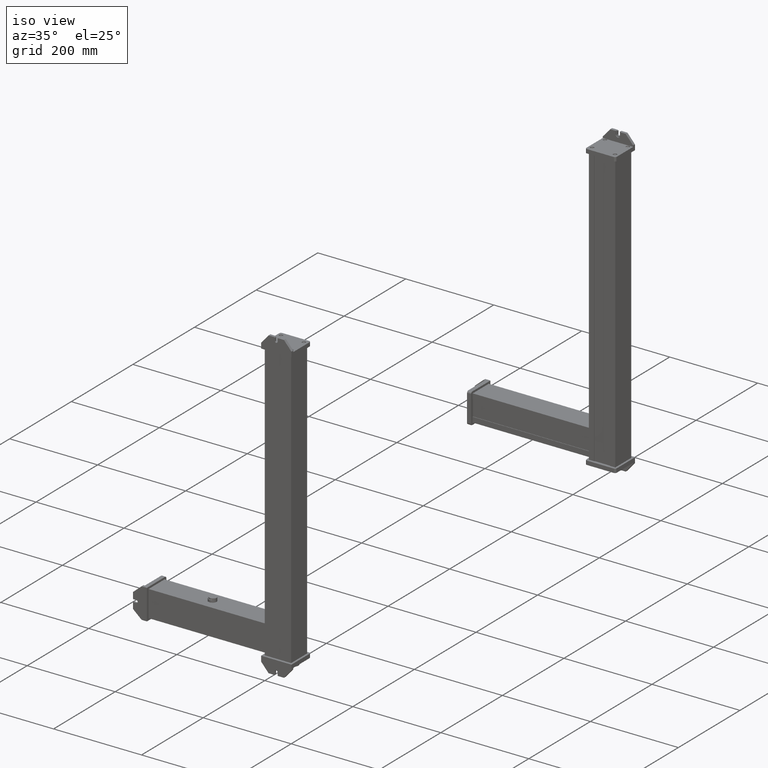
[diagram: clean part render]
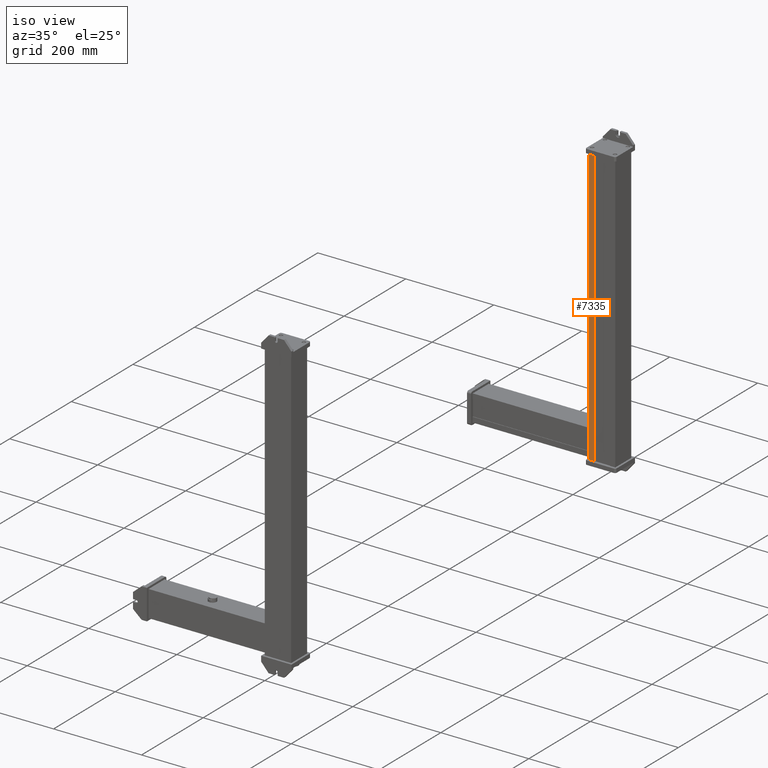
[diagram: same view with one face highlighted and labeled with its STEP entity id]
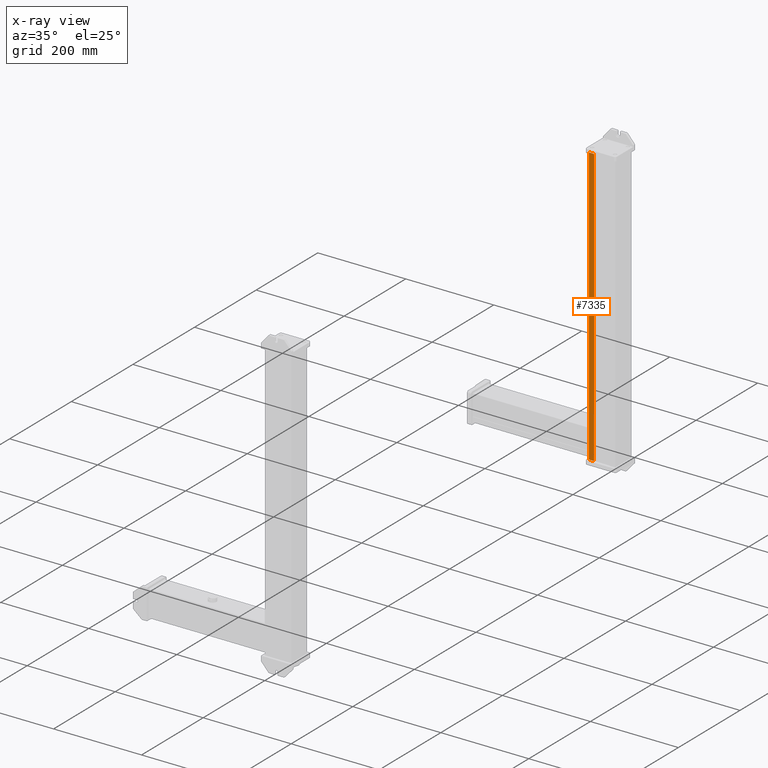
[diagram: x-ray of the same camera — body ghosted, the highlighted face saturated]
A machine part, iso view. The second image highlights one B-rep face of the part: STEP entity #7335.
The next image is the same camera in x-ray: the body ghosted, the highlighted face saturated — about 0% of this face is hidden behind the body in this view.
In plain terms, the highlighted planar face has unit normal (0, -1, 0).
Its self-contained STEP definition (entity closure, byte-faithful):
#7283=CARTESIAN_POINT('Vertex',(60.,52.,0.)) ;
#7286=CARTESIAN_POINT('Line Origine',(60.,52.,315.5)) ;
#7290=CARTESIAN_POINT('Vertex',(60.,52.,631.)) ;
#7305=CARTESIAN_POINT('Axis2P3D Location',(60.,52.,0.)) ;
#7310=CARTESIAN_POINT('Line Origine',(54.,52.,0.)) ;
#7314=CARTESIAN_POINT('Vertex',(48.,52.,0.)) ;
#7317=CARTESIAN_POINT('Line Origine',(48.,52.,315.5)) ;
#7321=CARTESIAN_POINT('Vertex',(48.,52.,631.)) ;
#7324=CARTESIAN_POINT('Line Origine',(54.,52.,631.)) ;
#7287=DIRECTION('Vector Direction',(0.,0.,1.)) ;
#7306=DIRECTION('Axis2P3D Direction',(0.,1.,-0.)) ;
#7307=DIRECTION('Axis2P3D XDirection',(-1.,0.,0.)) ;
#7311=DIRECTION('Vector Direction',(-1.,0.,0.)) ;
#7318=DIRECTION('Vector Direction',(0.,0.,1.)) ;
#7325=DIRECTION('Vector Direction',(-1.,0.,0.)) ;
#7308=AXIS2_PLACEMENT_3D('Plane Axis2P3D',#7305,#7306,#7307) ;
#7330=ORIENTED_EDGE('',*,*,#7292,.F.) ;
#7331=ORIENTED_EDGE('',*,*,#7316,.T.) ;
#7332=ORIENTED_EDGE('',*,*,#7323,.T.) ;
#7333=ORIENTED_EDGE('',*,*,#7328,.F.) ;
#7288=VECTOR('Line Direction',#7287,1.) ;
#7312=VECTOR('Line Direction',#7311,1.) ;
#7319=VECTOR('Line Direction',#7318,1.) ;
#7326=VECTOR('Line Direction',#7325,1.) ;
#7335=ADVANCED_FACE('PartBody',(#7334),#7309,.T.) ;
#7292=EDGE_CURVE('',#7284,#7291,#7289,.T.) ;
#7316=EDGE_CURVE('',#7284,#7315,#7313,.T.) ;
#7323=EDGE_CURVE('',#7315,#7322,#7320,.T.) ;
#7328=EDGE_CURVE('',#7291,#7322,#7327,.T.) ;
#7329=EDGE_LOOP('',(#7330,#7331,#7332,#7333)) ;
#7334=FACE_OUTER_BOUND('',#7329,.T.) ;
#7289=LINE('Line',#7286,#7288) ;
#7313=LINE('Line',#7310,#7312) ;
#7320=LINE('Line',#7317,#7319) ;
#7327=LINE('Line',#7324,#7326) ;
#7309=PLANE('Plane',#7308) ;
#7284=VERTEX_POINT('',#7283) ;
#7291=VERTEX_POINT('',#7290) ;
#7315=VERTEX_POINT('',#7314) ;
#7322=VERTEX_POINT('',#7321) ;